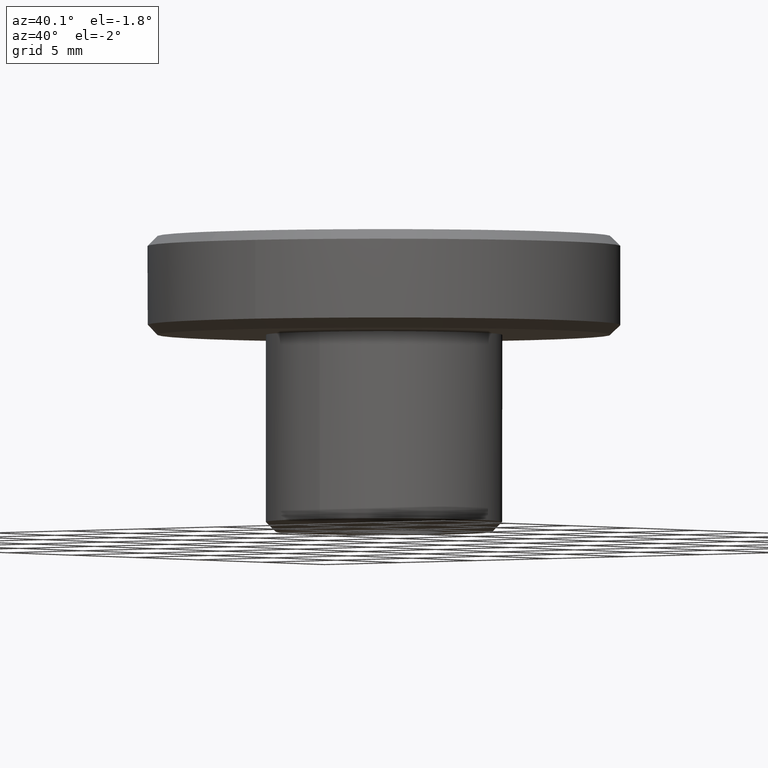
[diagram: clean part render]
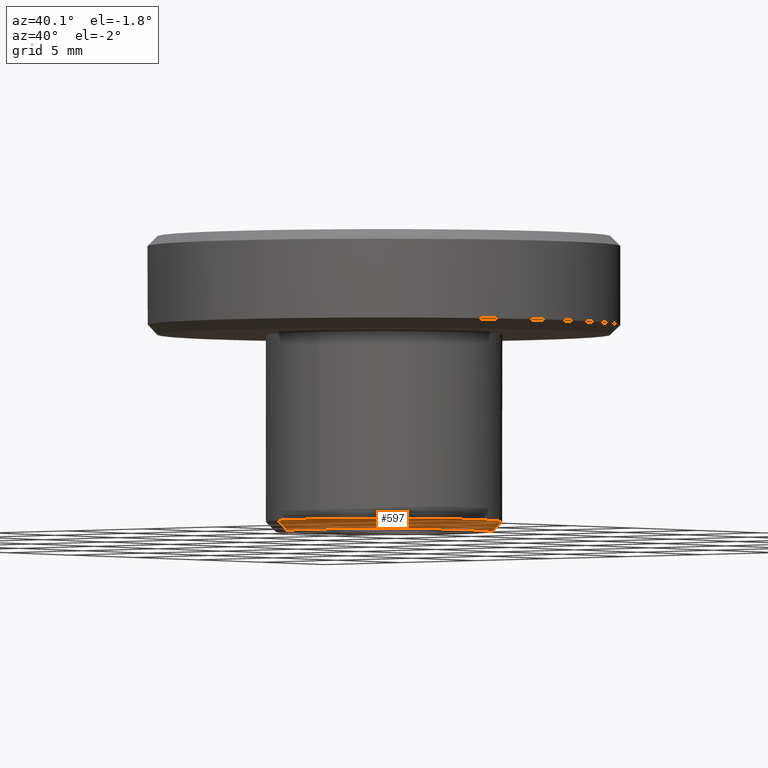
[diagram: same view with one face highlighted and labeled with its STEP entity id]
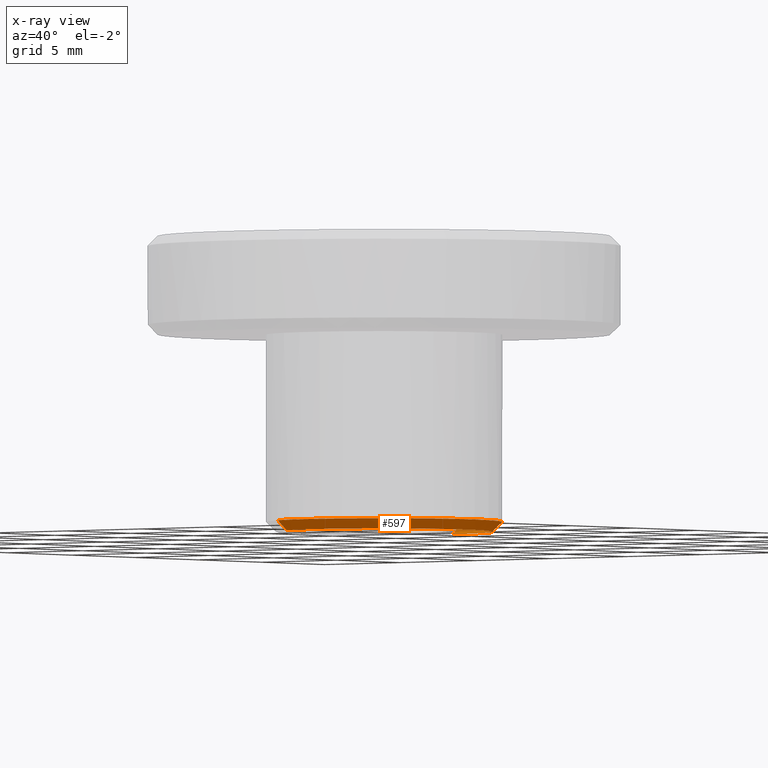
[diagram: x-ray of the same camera — body ghosted, the highlighted face saturated]
A machine part, auxiliary view. The second image highlights one B-rep face of the part: STEP entity #597.
The next image is the same camera in x-ray: the body ghosted, the highlighted face saturated — about 2% of this face is hidden behind the body in this view.
In plain terms, the highlighted face is a freeform B-spline surface patch.
Its self-contained STEP definition (entity closure, byte-faithful):
#476=CARTESIAN_POINT('',(-2.218132183033460,-5.019217655032625,-0.012499999999999));
#477=CARTESIAN_POINT('',(-1.135599143609664,-5.497619178731310,-0.012499999999999));
#478=CARTESIAN_POINT('',(0.047886863547327,-5.487291052814638,-0.012499999999999));
#479=CARTESIAN_POINT('',(5.535177916361964,-5.439404189267312,-0.012499999999999));
#480=CARTESIAN_POINT('',(5.487291052814638,0.047886863547327,-0.012499999999999));
#481=CARTESIAN_POINT('',(5.439404189267312,5.535177916361964,-0.012499999999999));
#482=CARTESIAN_POINT('',(-0.047886863547327,5.487291052814638,-0.012499999999999));
#483=CARTESIAN_POINT('',(-2.430471602149591,-5.499701987499018,0.512812499999944));
#484=CARTESIAN_POINT('',(-1.244308833837901,-6.023900376877514,0.512812499999944));
#485=CARTESIAN_POINT('',(0.052471021726316,-6.012583550524287,0.512812499999944));
#486=CARTESIAN_POINT('',(6.065054572250603,-5.960112528797970,0.512812499999944));
#487=CARTESIAN_POINT('',(6.012583550524287,0.052471021726316,0.512812499999944));
#488=CARTESIAN_POINT('',(5.960112528797970,6.065054572250603,0.512812499999944));
#489=CARTESIAN_POINT('',(-0.052471021726316,6.012583550524287,0.512812499999944));
#497=(BOUNDED_SURFACE()B_SPLINE_SURFACE(2,1,((#476,#483),(#477,#484),(#478,#485),(#479,#486),(#480,#487),(#481,#488),(#482,#489)),.UNSPECIFIED.,.F.,.F.,.U.)B_SPLINE_SURFACE_WITH_KNOTS((3,2,2,3),(2,2),(0.0,2.789459103767254,12.751813045793160,22.714166987819059),(0.0,1.0),.UNSPECIFIED.)GEOMETRIC_REPRESENTATION_ITEM()RATIONAL_B_SPLINE_SURFACE(((0.881905454174416,0.881905454174416),(0.917989898732233,0.917989898732233),(1.0,1.0),(0.707106781186548,0.707106781186548),(1.0,1.0),(0.707106781186548,0.707106781186548),(1.0,1.0)))REPRESENTATION_ITEM('')SURFACE());
#498=CARTESIAN_POINT('',(-2.425292591938250,-5.487982857435078,0.500000000000932));
#499=VERTEX_POINT('',#498);
#500=CARTESIAN_POINT('',(0.744764759161742,-5.953597689926655,0.499999999999930));
#501=VERTEX_POINT('',#500);
#502=CARTESIAN_POINT('',(-2.425292591938249,-5.487982857435078,0.500000000000932));
#503=CARTESIAN_POINT('',(-1.266693703523404,-6.0,0.499999999999945));
#504=CARTESIAN_POINT('',(0.0,-6.0,0.499999999999945));
#505=CARTESIAN_POINT('',(0.373827919500460,-6.0,0.499999999999945));
#506=CARTESIAN_POINT('',(0.744764759161742,-5.953597689926655,0.499999999999930));
#514=(BOUNDED_CURVE()B_SPLINE_CURVE(2,(#502,#503,#504,#505,#506),.UNSPECIFIED.,.F.,.U.)B_SPLINE_CURVE_WITH_KNOTS((3,2,3),(0.181361578459330,0.250000000000000,0.271473836814868),.UNSPECIFIED.)CURVE()GEOMETRIC_REPRESENTATION_ITEM()RATIONAL_B_SPLINE_CURVE((0.883326595751248,0.919585087122714,1.0,0.974841835260074,0.954005609113641))REPRESENTATION_ITEM(''));
#515=EDGE_CURVE('',#499,#501,#514,.T.);
#516=ORIENTED_EDGE('',*,*,#515,.F.);
#517=CARTESIAN_POINT('',(-2.223184875959487,-5.030650952643277,2.338029E-012));
#518=VERTEX_POINT('',#517);
#519=CARTESIAN_POINT('',(-2.223184875959487,-5.030650952643277,2.338029E-012));
#520=CARTESIAN_POINT('',(-2.425292591938250,-5.487982857435078,0.500000000000932));
#521=QUASI_UNIFORM_CURVE('',1,(#519,#520),.UNSPECIFIED.,.F.,.U.);
#522=EDGE_CURVE('',#518,#499,#521,.T.);
#523=ORIENTED_EDGE('',*,*,#522,.F.);
#524=CARTESIAN_POINT('',(5.500000000000000,0.0,0.0));
#525=VERTEX_POINT('',#524);
#526=CARTESIAN_POINT('',(5.500000000000000,0.0,0.0));
#527=CARTESIAN_POINT('',(5.500000000000001,-5.500000000000001,0.0));
#528=CARTESIAN_POINT('',(0.0,-5.500000000000000,0.0));
#529=CARTESIAN_POINT('',(-1.161135894914166,-5.500000000000000,0.0));
#530=CARTESIAN_POINT('',(-2.223184875959488,-5.030650952643277,2.338029E-012));
#538=(BOUNDED_CURVE()B_SPLINE_CURVE(2,(#526,#527,#528,#529,#530),.UNSPECIFIED.,.F.,.U.)B_SPLINE_CURVE_WITH_KNOTS((3,2,3),(0.500000000000000,0.750000000000000,0.818638421541633),.UNSPECIFIED.)CURVE()GEOMETRIC_REPRESENTATION_ITEM()RATIONAL_B_SPLINE_CURVE((1.0,0.707106781186548,1.0,0.919585087121586,0.883326595750231))REPRESENTATION_ITEM(''));
#539=EDGE_CURVE('',#525,#518,#538,.T.);
#540=ORIENTED_EDGE('',*,*,#539,.F.);
#541=CARTESIAN_POINT('',(-0.047995945248909,5.499790576853938,1.065194E-012));
#542=VERTEX_POINT('',#541);
#543=CARTESIAN_POINT('',(-0.047995945248909,5.499790576853938,1.065194E-012));
#544=CARTESIAN_POINT('',(-0.023998429521703,5.500000000000001,0.0));
#545=CARTESIAN_POINT('',(0.0,5.500000000000000,0.0));
#546=CARTESIAN_POINT('',(5.500000000000001,5.500000000000001,0.0));
#547=CARTESIAN_POINT('',(5.500000000000000,0.0,0.0));
#555=(BOUNDED_CURVE()B_SPLINE_CURVE(2,(#543,#544,#545,#546,#547),.UNSPECIFIED.,.F.,.U.)B_SPLINE_CURVE_WITH_KNOTS((3,2,3),(0.248460105664510,0.250000000000000,0.500000000000000),.UNSPECIFIED.)CURVE()GEOMETRIC_REPRESENTATION_ITEM()RATIONAL_B_SPLINE_CURVE((0.996414028099243,0.998195901565783,1.0,0.707106781186548,1.0))REPRESENTATION_ITEM(''));
#556=EDGE_CURVE('',#542,#525,#555,.T.);
#557=ORIENTED_EDGE('',*,*,#556,.F.);
#558=CARTESIAN_POINT('',(-0.052357016216925,5.999771557553567,0.499999999999151));
#559=VERTEX_POINT('',#558);
#560=CARTESIAN_POINT('',(-0.047995945248909,5.499790576853938,1.065194E-012));
#561=CARTESIAN_POINT('',(-0.052357016216925,5.999771557553567,0.499999999999151));
#562=QUASI_UNIFORM_CURVE('',1,(#560,#561),.UNSPECIFIED.,.F.,.U.);
#563=EDGE_CURVE('',#542,#559,#562,.T.);
#564=ORIENTED_EDGE('',*,*,#563,.T.);
#565=CARTESIAN_POINT('',(6.0,0.0,0.499999999999945));
#566=VERTEX_POINT('',#565);
#567=CARTESIAN_POINT('',(6.0,0.0,0.499999999999945));
#568=CARTESIAN_POINT('',(6.0,6.0,0.499999999999945));
#569=CARTESIAN_POINT('',(0.0,6.0,0.499999999999945));
#570=CARTESIAN_POINT('',(-0.026179006474824,6.000000000000001,0.499999999999945));
#571=CARTESIAN_POINT('',(-0.052357016216925,5.999771557553567,0.499999999999151));
#579=(BOUNDED_CURVE()B_SPLINE_CURVE(2,(#567,#568,#569,#570,#571),.UNSPECIFIED.,.F.,.U.)B_SPLINE_CURVE_WITH_KNOTS((3,2,3),(0.500000000000000,0.750000000000000,0.751539829841568),.UNSPECIFIED.)CURVE()GEOMETRIC_REPRESENTATION_ITEM()RATIONAL_B_SPLINE_CURVE((1.0,0.707106781186548,1.0,0.998195977125113,0.996414177356287))REPRESENTATION_ITEM(''));
#580=EDGE_CURVE('',#566,#559,#579,.T.);
#581=ORIENTED_EDGE('',*,*,#580,.F.);
#582=CARTESIAN_POINT('',(0.744764759161742,-5.953597689926655,0.499999999999930));
#583=CARTESIAN_POINT('',(6.000000000000001,-5.296194517539298,0.499999999999945));
#584=CARTESIAN_POINT('',(6.0,0.0,0.499999999999945));
#592=(BOUNDED_CURVE()B_SPLINE_CURVE(2,(#582,#583,#584),.UNSPECIFIED.,.F.,.U.)B_SPLINE_CURVE_WITH_KNOTS((3,3),(0.271473836814868,0.500000000000000),.UNSPECIFIED.)CURVE()GEOMETRIC_REPRESENTATION_ITEM()RATIONAL_B_SPLINE_CURVE((0.954005609113641,0.732264945926474,1.0))REPRESENTATION_ITEM(''));
#593=EDGE_CURVE('',#501,#566,#592,.T.);
#594=ORIENTED_EDGE('',*,*,#593,.F.);
#595=EDGE_LOOP('',(#516,#523,#540,#557,#564,#581,#594));
#596=FACE_OUTER_BOUND('',#595,.T.);
#597=ADVANCED_FACE('',(#596),#497,.T.);